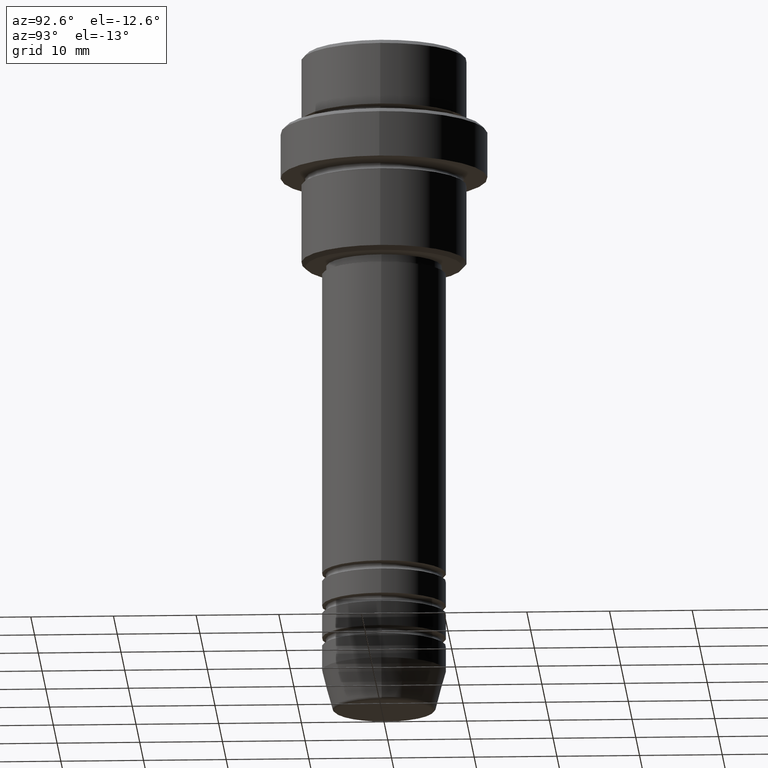
[diagram: clean part render]
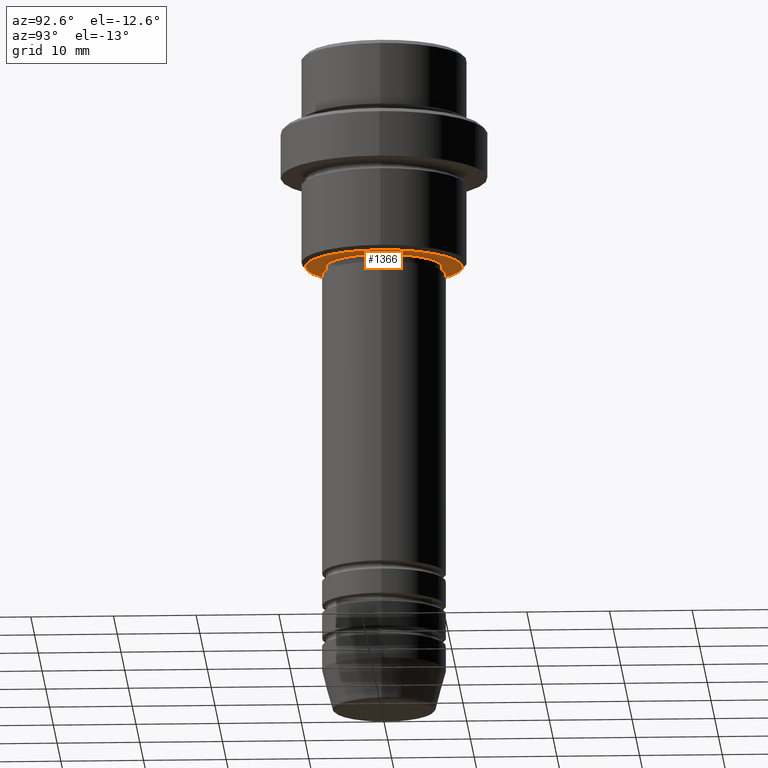
[diagram: same view with one face highlighted and labeled with its STEP entity id]
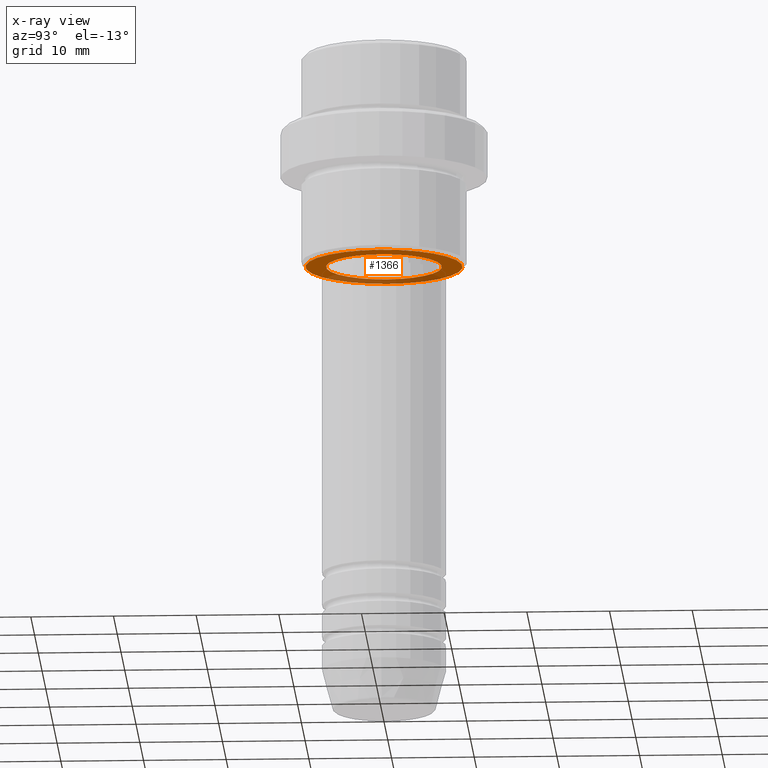
[diagram: x-ray of the same camera — body ghosted, the highlighted face saturated]
A machine part, auxiliary view. The second image highlights one B-rep face of the part: STEP entity #1366.
The next image is the same camera in x-ray: the body ghosted, the highlighted face saturated — about 28% of this face is hidden behind the body in this view.
In plain terms, the highlighted planar face has unit normal (0, 0, -1).
Its self-contained STEP definition (entity closure, byte-faithful):
#22 = VERTEX_POINT ( 'NONE', #585 ) ;
#35 = DIRECTION ( 'NONE',  ( -0.000000000000000000, -0.000000000000000000, 1.000000000000000000 ) ) ;
#50 = CARTESIAN_POINT ( 'NONE',  ( 0.000000000000000000, 0.000000000000000000, -26.00000000000000355 ) ) ;
#64 = CARTESIAN_POINT ( 'NONE',  ( 6.999999999999993783, 0.000000000000000000, -26.00000000000000355 ) ) ;
#66 = ORIENTED_EDGE ( 'NONE', *, *, #464, .T. ) ;
#72 = FACE_OUTER_BOUND ( 'NONE', #415, .T. ) ;
#77 = DIRECTION ( 'NONE',  ( 0.000000000000000000, 0.000000000000000000, -1.000000000000000000 ) ) ;
#92 = DIRECTION ( 'NONE',  ( 1.000000000000000000, 0.000000000000000000, 0.000000000000000000 ) ) ;
#243 = AXIS2_PLACEMENT_3D ( 'NONE', #1153, #501, #598 ) ;
#244 = ORIENTED_EDGE ( 'NONE', *, *, #638, .T. ) ;
#258 = VERTEX_POINT ( 'NONE', #1302 ) ;
#301 = VERTEX_POINT ( 'NONE', #64 ) ;
#347 = EDGE_CURVE ( 'NONE', #258, #22, #1160, .T. ) ;
#364 = CARTESIAN_POINT ( 'NONE',  ( 0.000000000000000000, 0.000000000000000000, -26.00000000000000355 ) ) ;
#415 = EDGE_LOOP ( 'NONE', ( #1016, #1329 ) ) ;
#464 = EDGE_CURVE ( 'NONE', #1368, #301, #1111, .T. ) ;
#501 = DIRECTION ( 'NONE',  ( 0.000000000000000000, 0.000000000000000000, -1.000000000000000000 ) ) ;
#559 = DIRECTION ( 'NONE',  ( 0.000000000000000000, 0.000000000000000000, -1.000000000000000000 ) ) ;
#585 = CARTESIAN_POINT ( 'NONE',  ( -9.500000000000001776, 1.194030629168669469E-15, -26.00000000000000355 ) ) ;
#586 = DIRECTION ( 'NONE',  ( -1.000000000000000000, 0.000000000000000000, 0.000000000000000000 ) ) ;
#596 = CIRCLE ( 'NONE', #1137, 9.500000000000001776 ) ;
#598 = DIRECTION ( 'NONE',  ( -1.000000000000000000, 0.000000000000000000, -0.000000000000000000 ) ) ;
#628 = AXIS2_PLACEMENT_3D ( 'NONE', #698, #35, #784 ) ;
#638 = EDGE_CURVE ( 'NONE', #301, #1368, #974, .T. ) ;
#655 = EDGE_CURVE ( 'NONE', #22, #258, #596, .T. ) ;
#656 = DIRECTION ( 'NONE',  ( -0.000000000000000000, -0.000000000000000000, 1.000000000000000000 ) ) ;
#698 = CARTESIAN_POINT ( 'NONE',  ( 0.000000000000000000, 0.000000000000000000, -26.00000000000000355 ) ) ;
#712 = FACE_BOUND ( 'NONE', #1238, .T. ) ;
#784 = DIRECTION ( 'NONE',  ( 1.000000000000000000, 0.000000000000000000, 0.000000000000000000 ) ) ;
#937 = CARTESIAN_POINT ( 'NONE',  ( -6.999999999999993783, 8.572527594031465301E-16, -26.00000000000000355 ) ) ;
#974 = CIRCLE ( 'NONE', #628, 6.999999999999993783 ) ;
#1016 = ORIENTED_EDGE ( 'NONE', *, *, #347, .T. ) ;
#1077 = CARTESIAN_POINT ( 'NONE',  ( 0.000000000000000000, 0.000000000000000000, -26.00000000000000355 ) ) ;
#1111 = CIRCLE ( 'NONE', #1134, 6.999999999999993783 ) ;
#1134 = AXIS2_PLACEMENT_3D ( 'NONE', #1077, #656, #92 ) ;
#1137 = AXIS2_PLACEMENT_3D ( 'NONE', #364, #559, #586 ) ;
#1153 = CARTESIAN_POINT ( 'NONE',  ( 0.000000000000000000, 10.00000000000000000, -26.00000000000000355 ) ) ;
#1160 = CIRCLE ( 'NONE', #1334, 9.500000000000001776 ) ;
#1238 = EDGE_LOOP ( 'NONE', ( #244, #66 ) ) ;
#1262 = DIRECTION ( 'NONE',  ( -1.000000000000000000, 0.000000000000000000, 0.000000000000000000 ) ) ;
#1302 = CARTESIAN_POINT ( 'NONE',  ( 9.500000000000001776, 0.000000000000000000, -26.00000000000000355 ) ) ;
#1329 = ORIENTED_EDGE ( 'NONE', *, *, #655, .T. ) ;
#1334 = AXIS2_PLACEMENT_3D ( 'NONE', #50, #77, #1262 ) ;
#1366 = ADVANCED_FACE ( 'NONE', ( #72, #712 ), #1393, .T. ) ;
#1368 = VERTEX_POINT ( 'NONE', #937 ) ;
#1393 = PLANE ( 'NONE',  #243 ) ;